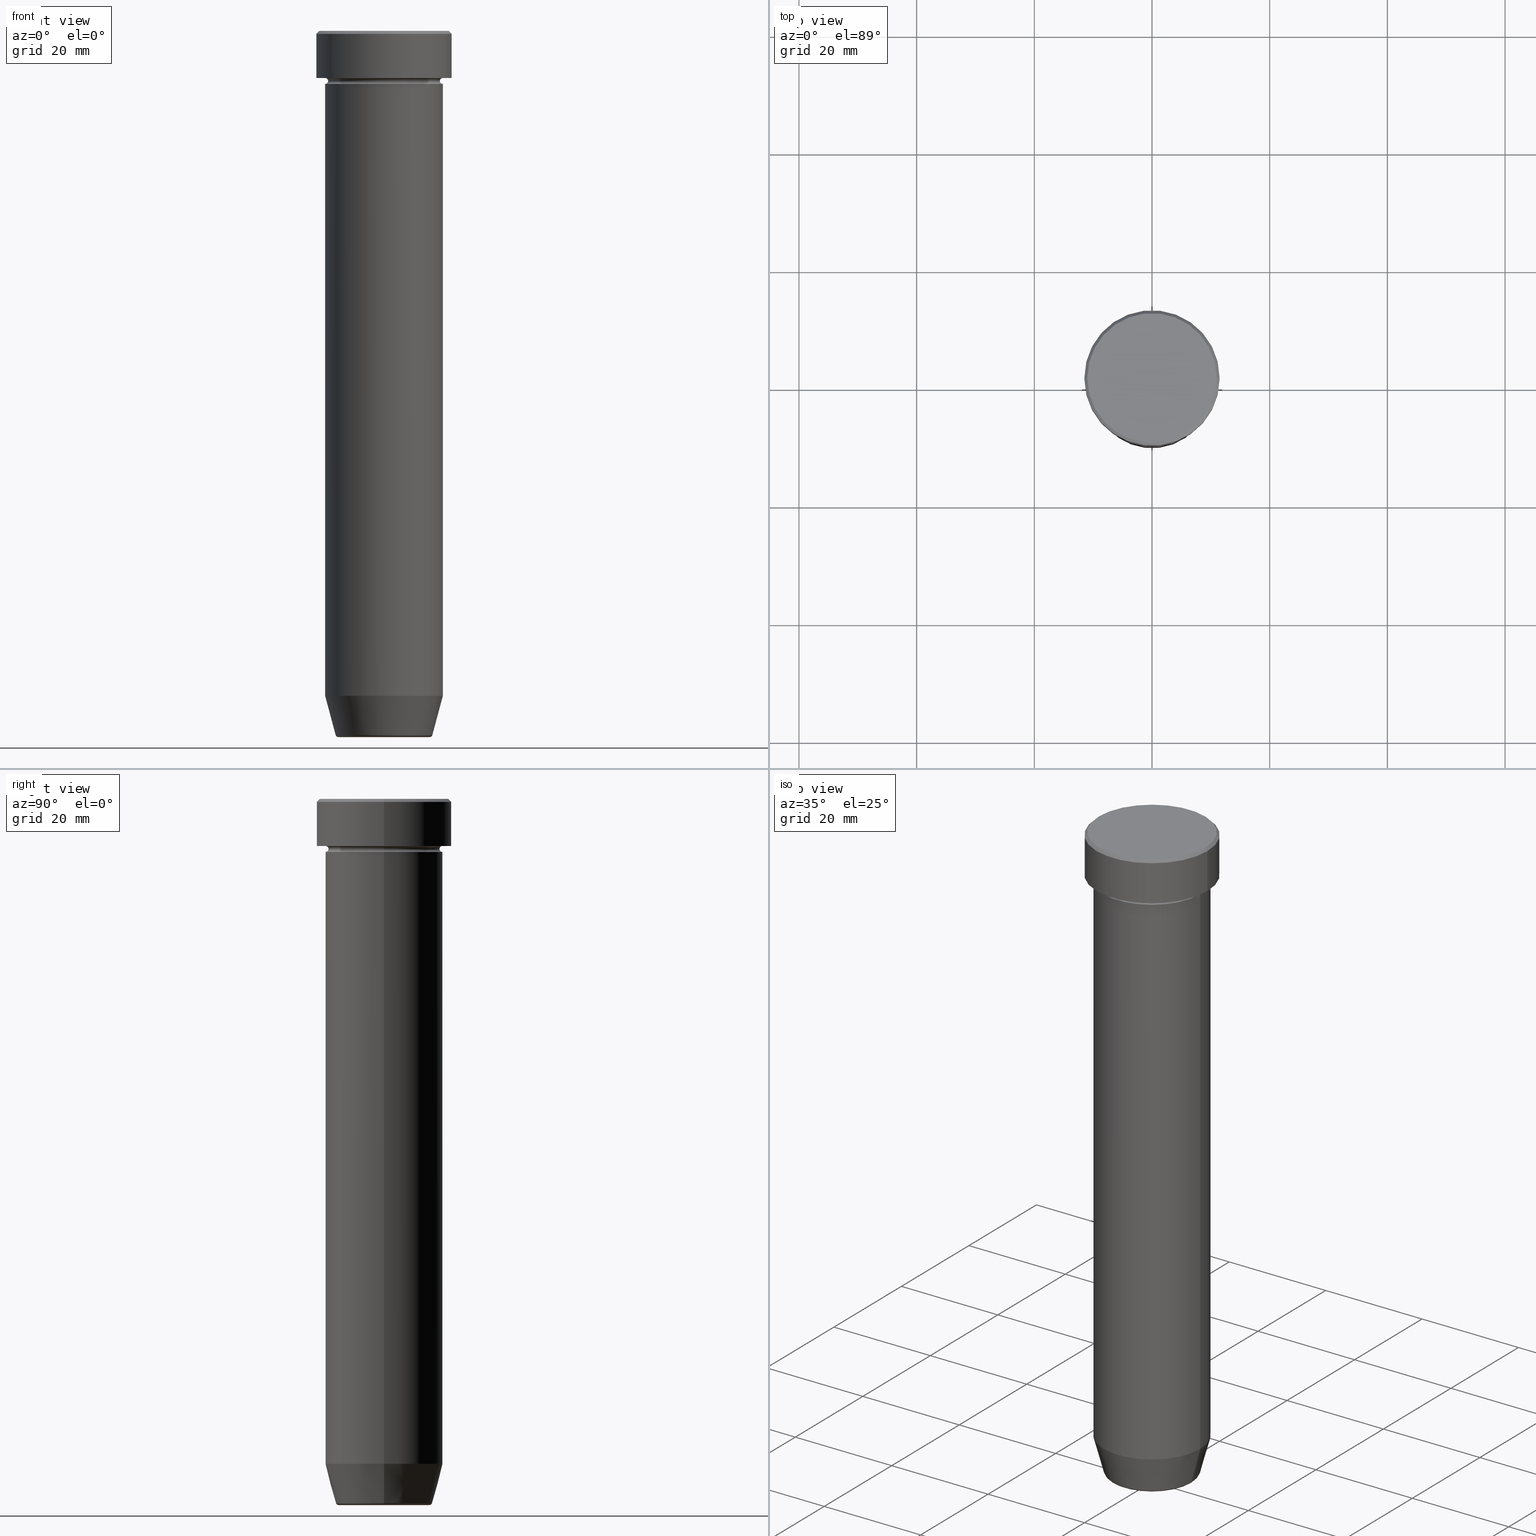
[diagram: canonical four-view strip — front | top / right | iso, engineering-drawing reading convention]
A machine part, canonical four-view strip (front | top / right | iso — engineering-drawing reading convention). The complete STEP part file that produces these views, byte-faithful:
ISO-10303-21;
HEADER;
FILE_DESCRIPTION (( 'STEP AP203' ),
    '1' );
FILE_NAME ('51a9.STEP',
    '2024-01-02T20:53:04',
    ( '' ),
    ( '' ),
    'SwSTEP 2.0',
    'SolidWorks 2019',
    '' );
FILE_SCHEMA (( 'CONFIG_CONTROL_DESIGN' ));
ENDSEC;

DATA;
#1 = ORIENTED_EDGE ( 'NONE', *, *, #342, .F. ) ;
#2 = VERTEX_POINT ( 'NONE', #157 ) ;
#3 = DIRECTION ( 'NONE',  ( -1.000000000000000000, 0.000000000000000000, -0.000000000000000000 ) ) ;
#4 = APPROVAL ( #128, 'NEUR�EN�' ) ;
#5 = CIRCLE ( 'NONE', #458, 11.50000000000000000 ) ;
#6 = EDGE_LOOP ( 'NONE', ( #470, #141 ) ) ;
#7 = AXIS2_PLACEMENT_3D ( 'NONE', #77, #172, #526 ) ;
#8 = EDGE_LOOP ( 'NONE', ( #100, #553, #138, #558 ) ) ;
#9 = DIRECTION ( 'NONE',  ( -0.000000000000000000, -0.000000000000000000, 1.000000000000000000 ) ) ;
#10 = DIRECTION ( 'NONE',  ( 0.000000000000000000, 0.000000000000000000, -1.000000000000000000 ) ) ;
#11 = VERTEX_POINT ( 'NONE', #152 ) ;
#12 = ORIENTED_EDGE ( 'NONE', *, *, #348, .F. ) ;
#13 = DESIGN_CONTEXT ( 'detailed design', #272, 'design' ) ;
#14 = DIRECTION ( 'NONE',  ( 0.000000000000000000, 0.000000000000000000, -1.000000000000000000 ) ) ;
#15 = ORIENTED_EDGE ( 'NONE', *, *, #165, .T. ) ;
#16 = DIRECTION ( 'NONE',  ( 0.000000000000000000, 0.000000000000000000, -1.000000000000000000 ) ) ;
#17 = VECTOR ( 'NONE', #114, 1000.000000000000000 ) ;
#18 = CIRCLE ( 'NONE', #291, 10.00000000000000000 ) ;
#19 = DIRECTION ( 'NONE',  ( 1.000000000000000000, 0.000000000000000000, 0.000000000000000000 ) ) ;
#20 = LINE ( 'NONE', #283, #117 ) ;
#21 = EDGE_LOOP ( 'NONE', ( #47, #380, #428, #570 ) ) ;
#22 = CARTESIAN_POINT ( 'NONE',  ( 10.00000000000000000, 0.000000000000000000, -22.00000000000000000 ) ) ;
#23 = ADVANCED_FACE ( 'NONE', ( #529 ), #361, .T. ) ;
#24 = DIRECTION ( 'NONE',  ( -0.000000000000000000, -0.000000000000000000, 1.000000000000000000 ) ) ;
#25 = AXIS2_PLACEMENT_3D ( 'NONE', #581, #436, #545 ) ;
#26 = AXIS2_PLACEMENT_3D ( 'NONE', #455, #224, #101 ) ;
#27 = CARTESIAN_POINT ( 'NONE',  ( 0.000000000000000000, 0.000000000000000000, -119.5000000000000000 ) ) ;
#28 = DIRECTION ( 'NONE',  ( -1.000000000000000000, 1.224646799147353454E-16, 0.000000000000000000 ) ) ;
#29 = VERTEX_POINT ( 'NONE', #294 ) ;
#30 = FACE_OUTER_BOUND ( 'NONE', #473, .T. ) ;
#31 = FACE_OUTER_BOUND ( 'NONE', #450, .T. ) ;
#32 = VERTEX_POINT ( 'NONE', #195 ) ;
#33 = CARTESIAN_POINT ( 'NONE',  ( 0.000000000000000000, 0.000000000000000000, -8.000000000000000000 ) ) ;
#34 = EDGE_CURVE ( 'NONE', #54, #427, #20, .T. ) ;
#35 = DIRECTION ( 'NONE',  ( 1.000000000000000000, 0.000000000000000000, 0.000000000000000000 ) ) ;
#36 = APPLICATION_PROTOCOL_DEFINITION ( 'international standard', 'config_control_design', 1994, #218 ) ;
#37 = DIRECTION ( 'NONE',  ( -0.000000000000000000, -0.000000000000000000, 1.000000000000000000 ) ) ;
#38 = CIRCLE ( 'NONE', #104, 8.223655072137185940 ) ;
#39 = DIRECTION ( 'NONE',  ( -0.000000000000000000, -0.000000000000000000, 1.000000000000000000 ) ) ;
#40 = FACE_OUTER_BOUND ( 'NONE', #366, .T. ) ;
#41 = DIRECTION ( 'NONE',  ( -1.000000000000000000, 0.000000000000000000, 0.000000000000000000 ) ) ;
#42 = ADVANCED_FACE ( 'NONE', ( #562 ), #198, .T. ) ;
#43 = APPLICATION_PROTOCOL_DEFINITION ( 'international standard', 'config_control_design', 1994, #272 ) ;
#44 = DIRECTION ( 'NONE',  ( 1.000000000000000000, 0.000000000000000000, 0.000000000000000000 ) ) ;
#45 = CIRCLE ( 'NONE', #140, 10.00000000000000000 ) ;
#46 = ORIENTED_EDGE ( 'NONE', *, *, #511, .T. ) ;
#47 = ORIENTED_EDGE ( 'NONE', *, *, #480, .F. ) ;
#48 = COORDINATED_UNIVERSAL_TIME_OFFSET ( 1, 0, .AHEAD. ) ;
#49 = CARTESIAN_POINT ( 'NONE',  ( -10.00000000000000000, 0.000000000000000000, -8.000000000000000000 ) ) ;
#50 = DATE_AND_TIME ( #425, #227 ) ;
#51 = ADVANCED_FACE ( 'NONE', ( #105 ), #61, .T. ) ;
#52 = CARTESIAN_POINT ( 'NONE',  ( 0.000000000000000000, 0.000000000000000000, -8.500000000000000000 ) ) ;
#53 = DIRECTION ( 'NONE',  ( 1.000000000000000000, 0.000000000000000000, 0.000000000000000000 ) ) ;
#54 = VERTEX_POINT ( 'NONE', #72 ) ;
#55 = ORIENTED_EDGE ( 'NONE', *, *, #87, .F. ) ;
#56 = CIRCLE ( 'NONE', #277, 0.5000000000000004441 ) ;
#57 = AXIS2_PLACEMENT_3D ( 'NONE', #52, #352, #544 ) ;
#58 = DIRECTION ( 'NONE',  ( 0.000000000000000000, -0.000000000000000000, 1.000000000000000000 ) ) ;
#59 = CARTESIAN_POINT ( 'NONE',  ( 0.000000000000000000, 0.000000000000000000, -22.00000000000000000 ) ) ;
#60 = CIRCLE ( 'NONE', #575, 9.999999999999998224 ) ;
#61 = CYLINDRICAL_SURFACE ( 'NONE', #551, 10.00000000000000000 ) ;
#62 = EDGE_CURVE ( 'NONE', #32, #374, #266, .T. ) ;
#63 = VERTEX_POINT ( 'NONE', #308 ) ;
#64 = ORIENTED_EDGE ( 'NONE', *, *, #335, .T. ) ;
#65 = CIRCLE ( 'NONE', #129, 11.00000000000000000 ) ;
#66 = AXIS2_PLACEMENT_3D ( 'NONE', #413, #153, #560 ) ;
#67 = EDGE_LOOP ( 'NONE', ( #271, #327, #97, #341 ) ) ;
#68 = CC_DESIGN_DATE_AND_TIME_ASSIGNMENT ( #501, #358, ( #112 ) ) ;
#69 = DIRECTION ( 'NONE',  ( 1.000000000000000000, 0.000000000000000000, 0.000000000000000000 ) ) ;
#70 = ORIENTED_EDGE ( 'NONE', *, *, #533, .F. ) ;
#71 = FACE_OUTER_BOUND ( 'NONE', #115, .T. ) ;
#72 = CARTESIAN_POINT ( 'NONE',  ( 11.50000000000000000, 0.000000000000000000, -8.000000000000000000 ) ) ;
#73 = PRODUCT_DEFINITION_FORMATION_WITH_SPECIFIED_SOURCE ( 'LIBOVOLN�', '', #182, .NOT_KNOWN. ) ;
#74 = DIRECTION ( 'NONE',  ( -1.000000000000000000, 0.000000000000000000, 0.000000000000000000 ) ) ;
#75 = DIRECTION ( 'NONE',  ( 0.000000000000000000, -1.000000000000000000, 0.000000000000000000 ) ) ;
#76 = EDGE_CURVE ( 'NONE', #461, #212, #419, .T. ) ;
#77 = CARTESIAN_POINT ( 'NONE',  ( 0.000000000000000000, 0.000000000000000000, -0.5000000000000073275 ) ) ;
#78 = DIRECTION ( 'NONE',  ( 0.000000000000000000, -1.000000000000000000, 0.000000000000000000 ) ) ;
#79 = DIRECTION ( 'NONE',  ( 1.000000000000000000, 0.000000000000000000, 0.000000000000000000 ) ) ;
#80 = DIRECTION ( 'NONE',  ( 0.2588190451025214611, 0.000000000000000000, 0.9659258262890679791 ) ) ;
#81 = DIRECTION ( 'NONE',  ( 0.000000000000000000, 0.000000000000000000, -1.000000000000000000 ) ) ;
#82 = DATE_AND_TIME ( #550, #459 ) ;
#83 = AXIS2_PLACEMENT_3D ( 'NONE', #118, #211, #444 ) ;
#84 = AXIS2_PLACEMENT_3D ( 'NONE', #154, #9, #370 ) ;
#85 = CARTESIAN_POINT ( 'NONE',  ( 0.000000000000000000, 0.000000000000000000, 0.000000000000000000 ) ) ;
#86 = FACE_BOUND ( 'NONE', #250, .T. ) ;
#87 = EDGE_CURVE ( 'NONE', #63, #11, #305, .T. ) ;
#88 = AXIS2_PLACEMENT_3D ( 'NONE', #216, #542, #81 ) ;
#89 = CARTESIAN_POINT ( 'NONE',  ( 0.000000000000000000, 0.000000000000000000, -120.0000000000000000 ) ) ;
#90 = DATE_AND_TIME ( #497, #131 ) ;
#91 = CIRCLE ( 'NONE', #226, 7.740692158992650285 ) ;
#92 = ORIENTED_EDGE ( 'NONE', *, *, #243, .T. ) ;
#93 = EDGE_CURVE ( 'NONE', #322, #2, #242, .T. ) ;
#94 = PERSON_AND_ORGANIZATION_ROLE ( 'creator' ) ;
#95 = DIRECTION ( 'NONE',  ( -0.000000000000000000, -0.000000000000000000, 1.000000000000000000 ) ) ;
#96 = FACE_OUTER_BOUND ( 'NONE', #6, .T. ) ;
#97 = ORIENTED_EDGE ( 'NONE', *, *, #511, .F. ) ;
#98 = DIRECTION ( 'NONE',  ( 1.000000000000000000, 0.000000000000000000, 0.000000000000000000 ) ) ;
#99 = ORIENTED_EDGE ( 'NONE', *, *, #348, .T. ) ;
#100 = ORIENTED_EDGE ( 'NONE', *, *, #586, .F. ) ;
#101 = DIRECTION ( 'NONE',  ( -1.000000000000000000, -1.224646799147353454E-16, 0.000000000000000000 ) ) ;
#102 = ORIENTED_EDGE ( 'NONE', *, *, #202, .F. ) ;
#103 = AXIS2_PLACEMENT_3D ( 'NONE', #534, #351, #474 ) ;
#104 = AXIS2_PLACEMENT_3D ( 'NONE', #326, #192, #337 ) ;
#105 = FACE_OUTER_BOUND ( 'NONE', #110, .T. ) ;
#106 = CARTESIAN_POINT ( 'NONE',  ( 0.000000000000000000, 0.000000000000000000, -9.000000000000001776 ) ) ;
#107 = ADVANCED_FACE ( 'NONE', ( #30 ), #532, .T. ) ;
#108 = EDGE_LOOP ( 'NONE', ( #189, #102 ) ) ;
#109 = ORIENTED_EDGE ( 'NONE', *, *, #34, .T. ) ;
#110 = EDGE_LOOP ( 'NONE', ( #273, #528, #514, #55 ) ) ;
#111 = TOROIDAL_SURFACE ( 'NONE', #340, 10.00000000000000000, 0.5000000000000000000 ) ;
#112 = PRODUCT_DEFINITION ( 'NEZN�M�', '', #73, #13 ) ;
#113 = LOCAL_TIME ( 21, 53, 4.000000000000000000, #572 ) ;
#114 = DIRECTION ( 'NONE',  ( -0.000000000000000000, -0.000000000000000000, 1.000000000000000000 ) ) ;
#115 = EDGE_LOOP ( 'NONE', ( #414, #385, #334, #321 ) ) ;
#116 = CARTESIAN_POINT ( 'NONE',  ( 0.000000000000000000, 0.000000000000000000, -112.9999999999999858 ) ) ;
#117 = VECTOR ( 'NONE', #332, 1000.000000000000000 ) ;
#118 = CARTESIAN_POINT ( 'NONE',  ( 0.000000000000000000, 0.000000000000000000, -9.000000000000001776 ) ) ;
#119 = CARTESIAN_POINT ( 'NONE',  ( 10.00000000000000000, 0.000000000000000000, 0.000000000000000000 ) ) ;
#120 = AXIS2_PLACEMENT_3D ( 'NONE', #460, #58, #201 ) ;
#121 = CARTESIAN_POINT ( 'NONE',  ( 11.00000000000000000, 1.347111479062088405E-15, 0.000000000000000000 ) ) ;
#122 = PLANE ( 'NONE',  #477 ) ;
#123 = FACE_OUTER_BOUND ( 'NONE', #509, .T. ) ;
#124 = DIRECTION ( 'NONE',  ( 1.000000000000000000, 0.000000000000000000, 0.000000000000000000 ) ) ;
#125 = MECHANICAL_CONTEXT ( 'NONE', #218, 'mechanical' ) ;
#126 = DIRECTION ( 'NONE',  ( 0.000000000000000000, -0.000000000000000000, 1.000000000000000000 ) ) ;
#127 = EDGE_CURVE ( 'NONE', #368, #500, #60, .T. ) ;
#128 = APPROVAL_STATUS ( 'not_yet_approved' ) ;
#129 = AXIS2_PLACEMENT_3D ( 'NONE', #162, #349, #536 ) ;
#130 = CIRCLE ( 'NONE', #434, 9.999999999999998224 ) ;
#131 = LOCAL_TIME ( 21, 53, 4.000000000000000000, #494 ) ;
#132 = ORIENTED_EDGE ( 'NONE', *, *, #243, .F. ) ;
#133 = DIRECTION ( 'NONE',  ( -0.000000000000000000, -0.000000000000000000, 1.000000000000000000 ) ) ;
#134 = PERSON_AND_ORGANIZATION_ROLE ( 'creator' ) ;
#135 = CARTESIAN_POINT ( 'NONE',  ( -9.999999999999998224, 1.224646799147353059E-15, -112.9999999999999858 ) ) ;
#136 = ADVANCED_FACE ( 'NONE', ( #587 ), #555, .T. ) ;
#137 = VERTEX_POINT ( 'NONE', #475 ) ;
#138 = ORIENTED_EDGE ( 'NONE', *, *, #595, .T. ) ;
#139 = AXIS2_PLACEMENT_3D ( 'NONE', #483, #307, #486 ) ;
#140 = AXIS2_PLACEMENT_3D ( 'NONE', #106, #420, #98 ) ;
#141 = ORIENTED_EDGE ( 'NONE', *, *, #282, .T. ) ;
#142 = DIRECTION ( 'NONE',  ( -1.000000000000000000, 0.000000000000000000, 0.000000000000000000 ) ) ;
#143 = ORIENTED_EDGE ( 'NONE', *, *, #342, .T. ) ;
#144 = CLOSED_SHELL ( 'NONE', ( #306, #210, #364, #237, #155, #253, #452, #567 ) ) ;
#145 = LINE ( 'NONE', #149, #594 ) ;
#146 = ADVANCED_BREP_SHAPE_REPRESENTATION ( '51a9', ( #589, #585, #525 ), #576 ) ;
#147 = DIRECTION ( 'NONE',  ( -0.000000000000000000, -0.000000000000000000, 1.000000000000000000 ) ) ;
#148 = EDGE_CURVE ( 'NONE', #338, #408, #65, .T. ) ;
#149 = CARTESIAN_POINT ( 'NONE',  ( -9.999999999999998224, 1.224646799147353059E-15, 0.000000000000000000 ) ) ;
#150 = CIRCLE ( 'NONE', #446, 7.740692158992650285 ) ;
#151 = VECTOR ( 'NONE', #133, 1000.000000000000000 ) ;
#152 = CARTESIAN_POINT ( 'NONE',  ( 10.00000000000000000, 0.000000000000000000, -9.000000000000001776 ) ) ;
#153 = DIRECTION ( 'NONE',  ( -0.000000000000000000, -0.000000000000000000, 1.000000000000000000 ) ) ;
#154 = CARTESIAN_POINT ( 'NONE',  ( 0.000000000000000000, 0.000000000000000000, -8.500000000000000000 ) ) ;
#155 = ADVANCED_FACE ( 'NONE', ( #396 ), #300, .T. ) ;
#156 = VERTEX_POINT ( 'NONE', #167 ) ;
#157 = CARTESIAN_POINT ( 'NONE',  ( -10.00000000000000000, 1.224646799147353256E-15, -22.00000000000000000 ) ) ;
#158 = DATE_TIME_ROLE ( 'classification_date' ) ;
#159 = AXIS2_PLACEMENT_3D ( 'NONE', #384, #478, #74 ) ;
#160 = CC_DESIGN_APPROVAL ( #503, ( #375 ) ) ;
#161 = CARTESIAN_POINT ( 'NONE',  ( -11.50000000000000000, 1.408343819019456176E-15, -8.000000000000000000 ) ) ;
#162 = CARTESIAN_POINT ( 'NONE',  ( 0.000000000000000000, 0.000000000000000000, 0.000000000000000000 ) ) ;
#163 = AXIS2_PLACEMENT_3D ( 'NONE', #209, #75, #213 ) ;
#164 = DIRECTION ( 'NONE',  ( -0.2588190451025214611, 3.169619151431774186E-17, 0.9659258262890679791 ) ) ;
#165 = EDGE_CURVE ( 'NONE', #523, #212, #311, .T. ) ;
#166 = LINE ( 'NONE', #588, #17 ) ;
#167 = CARTESIAN_POINT ( 'NONE',  ( -7.740692158992650285, 9.775343368540031246E-16, -120.0000000000000000 ) ) ;
#168 = TOROIDAL_SURFACE ( 'NONE', #139, 7.740692158992650285, 0.5000000000000000000 ) ;
#169 = CIRCLE ( 'NONE', #84, 9.500000000000000000 ) ;
#170 = CC_DESIGN_SECURITY_CLASSIFICATION ( #375, ( #73 ) ) ;
#171 = DIRECTION ( 'NONE',  ( 1.000000000000000000, 0.000000000000000000, 0.000000000000000000 ) ) ;
#172 = DIRECTION ( 'NONE',  ( 0.000000000000000000, 0.000000000000000000, -1.000000000000000000 ) ) ;
#173 = DIRECTION ( 'NONE',  ( -0.000000000000000000, -0.000000000000000000, 1.000000000000000000 ) ) ;
#174 = EDGE_CURVE ( 'NONE', #137, #32, #263, .T. ) ;
#175 =( LENGTH_UNIT ( ) NAMED_UNIT ( * ) SI_UNIT ( .MILLI., .METRE. ) );
#176 = CARTESIAN_POINT ( 'NONE',  ( 0.000000000000000000, 0.000000000000000000, 0.000000000000000000 ) ) ;
#177 = ORIENTED_EDGE ( 'NONE', *, *, #186, .T. ) ;
#178 = CALENDAR_DATE ( 2024, 2, 1 ) ;
#179 = CIRCLE ( 'NONE', #255, 10.00000000000000000 ) ;
#180 = AXIS2_PLACEMENT_3D ( 'NONE', #476, #537, #79 ) ;
#181 = DIRECTION ( 'NONE',  ( 1.000000000000000000, 0.000000000000000000, 0.000000000000000000 ) ) ;
#182 = PRODUCT ( '51a9', '51a9', '', ( #125 ) ) ;
#183 = DIRECTION ( 'NONE',  ( 1.000000000000000000, 0.000000000000000000, 0.000000000000000000 ) ) ;
#184 = ORIENTED_EDGE ( 'NONE', *, *, #586, .T. ) ;
#185 = PERSON_AND_ORGANIZATION ( #496, #246 ) ;
#186 = EDGE_CURVE ( 'NONE', #137, #11, #56, .T. ) ;
#187 = DIRECTION ( 'NONE',  ( 0.000000000000000000, 0.000000000000000000, -1.000000000000000000 ) ) ;
#188 = CARTESIAN_POINT ( 'NONE',  ( 0.000000000000000000, 0.000000000000000000, -8.500000000000000000 ) ) ;
#189 = ORIENTED_EDGE ( 'NONE', *, *, #323, .F. ) ;
#190 = CONICAL_SURFACE ( 'NONE', #538, 8.124355652982131915, 0.2617993877991502405 ) ;
#191 = AXIS2_PLACEMENT_3D ( 'NONE', #333, #289, #519 ) ;
#192 = DIRECTION ( 'NONE',  ( -0.000000000000000000, -0.000000000000000000, 1.000000000000000000 ) ) ;
#193 = EDGE_LOOP ( 'NONE', ( #46, #203, #596, #571 ) ) ;
#194 = PLANE ( 'NONE',  #354 ) ;
#195 = CARTESIAN_POINT ( 'NONE',  ( -9.500000000000000000, 1.194030629168669469E-15, -8.500000000000000000 ) ) ;
#196 = EDGE_CURVE ( 'NONE', #362, #374, #179, .T. ) ;
#197 = AXIS2_PLACEMENT_3D ( 'NONE', #465, #147, #328 ) ;
#198 = CYLINDRICAL_SURFACE ( 'NONE', #197, 11.50000000000000000 ) ;
#199 = DIRECTION ( 'NONE',  ( 1.000000000000000000, 0.000000000000000000, 0.000000000000000000 ) ) ;
#200 = CARTESIAN_POINT ( 'NONE',  ( 0.000000000000000000, 0.000000000000000000, 0.000000000000000000 ) ) ;
#201 = DIRECTION ( 'NONE',  ( 1.000000000000000000, 0.000000000000000000, 0.000000000000000000 ) ) ;
#202 = EDGE_CURVE ( 'NONE', #268, #54, #5, .T. ) ;
#203 = ORIENTED_EDGE ( 'NONE', *, *, #480, .T. ) ;
#204 = EDGE_LOOP ( 'NONE', ( #331, #409, #109, #454 ) ) ;
#205 = ORIENTED_EDGE ( 'NONE', *, *, #196, .T. ) ;
#206 = CARTESIAN_POINT ( 'NONE',  ( 0.000000000000000000, 0.000000000000000000, -8.000000000000000000 ) ) ;
#207 = CC_DESIGN_APPROVAL ( #4, ( #112 ) ) ;
#208 = DIRECTION ( 'NONE',  ( 1.000000000000000000, 0.000000000000000000, 0.000000000000000000 ) ) ;
#209 = CARTESIAN_POINT ( 'NONE',  ( 7.740692158992650285, 0.000000000000000000, -119.5000000000000000 ) ) ;
#210 = ADVANCED_FACE ( 'NONE', ( #367 ), #190, .T. ) ;
#211 = DIRECTION ( 'NONE',  ( -0.000000000000000000, -0.000000000000000000, 1.000000000000000000 ) ) ;
#212 = VERTEX_POINT ( 'NONE', #407 ) ;
#213 = DIRECTION ( 'NONE',  ( 0.000000000000000000, 0.000000000000000000, -1.000000000000000000 ) ) ;
#214 = CC_DESIGN_PERSON_AND_ORGANIZATION_ASSIGNMENT ( #443, #309, ( #73 ) ) ;
#215 = DIRECTION ( 'NONE',  ( 1.000000000000000000, 0.000000000000000000, 0.000000000000000000 ) ) ;
#216 = CARTESIAN_POINT ( 'NONE',  ( -10.00000000000000000, 0.000000000000000000, -8.500000000000000000 ) ) ;
#217 = AXIS2_PLACEMENT_3D ( 'NONE', #382, #220, #69 ) ;
#218 = APPLICATION_CONTEXT ( 'configuration controlled 3d designs of mechanical parts and assemblies' ) ;
#219 = APPROVAL_PERSON_ORGANIZATION ( #353, #4, #453 ) ;
#220 = DIRECTION ( 'NONE',  ( -0.000000000000000000, -0.000000000000000000, 1.000000000000000000 ) ) ;
#221 = CC_DESIGN_PERSON_AND_ORGANIZATION_ASSIGNMENT ( #185, #590, ( #182 ) ) ;
#222 = CARTESIAN_POINT ( 'NONE',  ( 0.000000000000000000, 0.000000000000000000, 0.000000000000000000 ) ) ;
#223 = DIRECTION ( 'NONE',  ( 1.000000000000000000, 0.000000000000000000, 0.000000000000000000 ) ) ;
#224 = DIRECTION ( 'NONE',  ( -1.224646799147353207E-16, 1.000000000000000000, 0.000000000000000000 ) ) ;
#225 = AXIS2_PLACEMENT_3D ( 'NONE', #310, #491, #124 ) ;
#226 = AXIS2_PLACEMENT_3D ( 'NONE', #557, #421, #19 ) ;
#227 = LOCAL_TIME ( 21, 53, 4.000000000000000000, #372 ) ;
#228 = ORIENTED_EDGE ( 'NONE', *, *, #196, .F. ) ;
#229 = ORIENTED_EDGE ( 'NONE', *, *, #335, .F. ) ;
#230 = APPROVAL_DATE_TIME ( #82, #4 ) ;
#231 = FACE_OUTER_BOUND ( 'NONE', #234, .T. ) ;
#232 = DIRECTION ( 'NONE',  ( -0.000000000000000000, -0.000000000000000000, 1.000000000000000000 ) ) ;
#233 = ORIENTED_EDGE ( 'NONE', *, *, #296, .T. ) ;
#234 = EDGE_LOOP ( 'NONE', ( #276, #463, #12, #245 ) ) ;
#235 = VECTOR ( 'NONE', #80, 1000.000000000000114 ) ;
#236 = CIRCLE ( 'NONE', #451, 11.50000000000000000 ) ;
#237 = ADVANCED_FACE ( 'NONE', ( #96 ), #194, .F. ) ;
#238 = EDGE_LOOP ( 'NONE', ( #355, #411, #417, #70 ) ) ;
#239 = FACE_OUTER_BOUND ( 'NONE', #319, .T. ) ;
#240 = CARTESIAN_POINT ( 'NONE',  ( 0.000000000000000000, 0.000000000000000000, -22.00000000000000000 ) ) ;
#241 = ORIENTED_EDGE ( 'NONE', *, *, #595, .F. ) ;
#242 = CIRCLE ( 'NONE', #284, 10.00000000000000000 ) ;
#243 = EDGE_CURVE ( 'NONE', #461, #156, #150, .T. ) ;
#244 = DIRECTION ( 'NONE',  ( 1.000000000000000000, 0.000000000000000000, 0.000000000000000000 ) ) ;
#245 = ORIENTED_EDGE ( 'NONE', *, *, #62, .F. ) ;
#246 = ORGANIZATION ( 'NEUR�EN�', 'NEUR�EN�', '' ) ;
#247 = ORIENTED_EDGE ( 'NONE', *, *, #448, .F. ) ;
#248 = PERSON_AND_ORGANIZATION_ROLE ( 'classification_officer' ) ;
#249 = CARTESIAN_POINT ( 'NONE',  ( -8.124355652982131915, 9.949466145559272639E-16, -120.0000000000000000 ) ) ;
#250 = EDGE_LOOP ( 'NONE', ( #99, #205 ) ) ;
#251 = CYLINDRICAL_SURFACE ( 'NONE', #103, 10.00000000000000000 ) ;
#252 = CARTESIAN_POINT ( 'NONE',  ( -11.00000000000000000, 0.000000000000000000, 0.000000000000000000 ) ) ;
#253 = ADVANCED_FACE ( 'NONE', ( #395 ), #593, .T. ) ;
#254 = DIRECTION ( 'NONE',  ( 1.000000000000000000, 0.000000000000000000, 0.000000000000000000 ) ) ;
#255 = AXIS2_PLACEMENT_3D ( 'NONE', #206, #258, #438 ) ;
#256 = AXIS2_PLACEMENT_3D ( 'NONE', #592, #126, #181 ) ;
#257 = CARTESIAN_POINT ( 'NONE',  ( -7.740692158992650285, 9.479613875695363848E-16, -119.5000000000000000 ) ) ;
#258 = DIRECTION ( 'NONE',  ( -0.000000000000000000, -0.000000000000000000, 1.000000000000000000 ) ) ;
#259 = CARTESIAN_POINT ( 'NONE',  ( -11.00000000000000000, 0.000000000000000000, 0.000000000000000000 ) ) ;
#260 = DIRECTION ( 'NONE',  ( -1.000000000000000000, 0.000000000000000000, 0.000000000000000000 ) ) ;
#261 = EDGE_CURVE ( 'NONE', #11, #287, #524, .T. ) ;
#262 = DIRECTION ( 'NONE',  ( -0.000000000000000000, -0.000000000000000000, 1.000000000000000000 ) ) ;
#263 = CIRCLE ( 'NONE', #546, 9.500000000000000000 ) ;
#264 = AXIS2_PLACEMENT_3D ( 'NONE', #257, #539, #437 ) ;
#265 = CARTESIAN_POINT ( 'NONE',  ( 0.000000000000000000, 0.000000000000000000, 0.000000000000000000 ) ) ;
#266 = CIRCLE ( 'NONE', #88, 0.5000000000000004441 ) ;
#267 = ADVANCED_FACE ( 'NONE', ( #389 ), #251, .T. ) ;
#268 = VERTEX_POINT ( 'NONE', #161 ) ;
#269 = PERSON_AND_ORGANIZATION ( #496, #246 ) ;
#270 = LINE ( 'NONE', #449, #151 ) ;
#271 = ORIENTED_EDGE ( 'NONE', *, *, #499, .T. ) ;
#272 = APPLICATION_CONTEXT ( 'configuration controlled 3d designs of mechanical parts and assemblies' ) ;
#273 = ORIENTED_EDGE ( 'NONE', *, *, #439, .T. ) ;
#274 = ADVANCED_FACE ( 'NONE', ( #31 ), #122, .T. ) ;
#275 = CARTESIAN_POINT ( 'NONE',  ( 0.000000000000000000, 0.000000000000000000, -0.5000000000000073275 ) ) ;
#276 = ORIENTED_EDGE ( 'NONE', *, *, #520, .T. ) ;
#277 = AXIS2_PLACEMENT_3D ( 'NONE', #584, #78, #481 ) ;
#278 = CARTESIAN_POINT ( 'NONE',  ( 11.50000000000000000, 0.000000000000000000, -0.5000000000000073275 ) ) ;
#279 = ORIENTED_EDGE ( 'NONE', *, *, #174, .T. ) ;
#280 = CIRCLE ( 'NONE', #412, 0.5000000000000004441 ) ;
#281 = ORIENTED_EDGE ( 'NONE', *, *, #165, .F. ) ;
#282 = EDGE_CURVE ( 'NONE', #2, #322, #490, .T. ) ;
#283 = CARTESIAN_POINT ( 'NONE',  ( 11.50000000000000000, 0.000000000000000000, 0.000000000000000000 ) ) ;
#284 = AXIS2_PLACEMENT_3D ( 'NONE', #392, #173, #35 ) ;
#285 = FACE_OUTER_BOUND ( 'NONE', #410, .T. ) ;
#286 = DIRECTION ( 'NONE',  ( -1.000000000000000000, 0.000000000000000000, -0.000000000000000000 ) ) ;
#287 = VERTEX_POINT ( 'NONE', #343 ) ;
#288 = ORIENTED_EDGE ( 'NONE', *, *, #76, .T. ) ;
#289 = DIRECTION ( 'NONE',  ( -0.000000000000000000, -0.000000000000000000, 1.000000000000000000 ) ) ;
#290 = CIRCLE ( 'NONE', #217, 11.50000000000000000 ) ;
#291 = AXIS2_PLACEMENT_3D ( 'NONE', #59, #512, #457 ) ;
#292 = ORIENTED_EDGE ( 'NONE', *, *, #174, .F. ) ;
#293 = APPROVAL_ROLE ( '' ) ;
#294 = CARTESIAN_POINT ( 'NONE',  ( -10.00000000000000000, 1.224646799147353256E-15, -22.00000000000000000 ) ) ;
#295 = FACE_OUTER_BOUND ( 'NONE', #510, .T. ) ;
#296 = EDGE_CURVE ( 'NONE', #268, #535, #166, .T. ) ;
#297 = ORIENTED_EDGE ( 'NONE', *, *, #439, .F. ) ;
#298 = DIRECTION ( 'NONE',  ( 1.000000000000000000, 0.000000000000000000, 0.000000000000000000 ) ) ;
#299 = CARTESIAN_POINT ( 'NONE',  ( 8.124355652982131915, 0.000000000000000000, -120.0000000000000000 ) ) ;
#300 = CYLINDRICAL_SURFACE ( 'NONE', #225, 9.999999999999998224 ) ;
#301 = AXIS2_PLACEMENT_3D ( 'NONE', #432, #24, #260 ) ;
#302 = CIRCLE ( 'NONE', #191, 11.00000000000000000 ) ;
#303 = DIRECTION ( 'NONE',  ( 0.7071067811865426878, 8.659560562354874926E-17, -0.7071067811865524577 ) ) ;
#304 = DIRECTION ( 'NONE',  ( 0.000000000000000000, 0.000000000000000000, -1.000000000000000000 ) ) ;
#305 = LINE ( 'NONE', #119, #498 ) ;
#306 = ADVANCED_FACE ( 'NONE', ( #71 ), #168, .T. ) ;
#307 = DIRECTION ( 'NONE',  ( -0.000000000000000000, -0.000000000000000000, 1.000000000000000000 ) ) ;
#308 = CARTESIAN_POINT ( 'NONE',  ( 10.00000000000000000, 0.000000000000000000, -22.00000000000000000 ) ) ;
#309 = PERSON_AND_ORGANIZATION_ROLE ( 'design_supplier' ) ;
#310 = CARTESIAN_POINT ( 'NONE',  ( 0.000000000000000000, 0.000000000000000000, 0.000000000000000000 ) ) ;
#311 = CIRCLE ( 'NONE', #301, 8.223655072137185940 ) ;
#312 = AXIS2_PLACEMENT_3D ( 'NONE', #495, #318, #3 ) ;
#313 = APPROVAL_ROLE ( '' ) ;
#314 = CYLINDRICAL_SURFACE ( 'NONE', #401, 9.999999999999998224 ) ;
#315 =( NAMED_UNIT ( * ) SI_UNIT ( $, .STERADIAN. ) SOLID_ANGLE_UNIT ( ) );
#316 = DIRECTION ( 'NONE',  ( -0.000000000000000000, -0.000000000000000000, 1.000000000000000000 ) ) ;
#317 = EDGE_CURVE ( 'NONE', #212, #500, #472, .T. ) ;
#318 = DIRECTION ( 'NONE',  ( 0.000000000000000000, 0.000000000000000000, -1.000000000000000000 ) ) ;
#319 = EDGE_LOOP ( 'NONE', ( #556, #279, #435, #228 ) ) ;
#320 = TOROIDAL_SURFACE ( 'NONE', #57, 10.00000000000000000, 0.5000000000000000000 ) ;
#321 = ORIENTED_EDGE ( 'NONE', *, *, #76, .F. ) ;
#322 = VERTEX_POINT ( 'NONE', #22 ) ;
#323 = EDGE_CURVE ( 'NONE', #54, #268, #290, .T. ) ;
#324 = CARTESIAN_POINT ( 'NONE',  ( 9.999999999999998224, 0.000000000000000000, -112.9999999999999858 ) ) ;
#325 = ORIENTED_EDGE ( 'NONE', *, *, #261, .T. ) ;
#326 = CARTESIAN_POINT ( 'NONE',  ( 0.000000000000000000, 0.000000000000000000, -119.6294095225512564 ) ) ;
#327 = ORIENTED_EDGE ( 'NONE', *, *, #559, .T. ) ;
#328 = DIRECTION ( 'NONE',  ( 1.000000000000000000, 0.000000000000000000, 0.000000000000000000 ) ) ;
#329 = AXIS2_PLACEMENT_3D ( 'NONE', #583, #441, #215 ) ;
#330 = DIRECTION ( 'NONE',  ( -0.000000000000000000, -0.000000000000000000, 1.000000000000000000 ) ) ;
#331 = ORIENTED_EDGE ( 'NONE', *, *, #296, .F. ) ;
#332 = DIRECTION ( 'NONE',  ( -0.000000000000000000, -0.000000000000000000, 1.000000000000000000 ) ) ;
#333 = CARTESIAN_POINT ( 'NONE',  ( 0.000000000000000000, 0.000000000000000000, 0.000000000000000000 ) ) ;
#334 = ORIENTED_EDGE ( 'NONE', *, *, #499, .F. ) ;
#335 = EDGE_CURVE ( 'NONE', #535, #427, #547, .T. ) ;
#336 = ORIENTED_EDGE ( 'NONE', *, *, #552, .T. ) ;
#337 = DIRECTION ( 'NONE',  ( -1.000000000000000000, 0.000000000000000000, 0.000000000000000000 ) ) ;
#338 = VERTEX_POINT ( 'NONE', #252 ) ;
#339 = SHAPE_DEFINITION_REPRESENTATION ( #359, #146 ) ;
#340 = AXIS2_PLACEMENT_3D ( 'NONE', #188, #187, #41 ) ;
#341 = ORIENTED_EDGE ( 'NONE', *, *, #317, .F. ) ;
#342 = EDGE_CURVE ( 'NONE', #32, #287, #280, .T. ) ;
#343 = CARTESIAN_POINT ( 'NONE',  ( -10.00000000000000000, 1.224646799147353256E-15, -9.000000000000001776 ) ) ;
#344 = ORIENTED_EDGE ( 'NONE', *, *, #552, .F. ) ;
#345 = DIRECTION ( 'NONE',  ( 1.000000000000000000, 0.000000000000000000, 0.000000000000000000 ) ) ;
#346 = DIRECTION ( 'NONE',  ( 0.000000000000000000, 0.000000000000000000, -1.000000000000000000 ) ) ;
#347 = DIRECTION ( 'NONE',  ( -1.000000000000000000, 0.000000000000000000, -0.000000000000000000 ) ) ;
#348 = EDGE_CURVE ( 'NONE', #374, #362, #422, .T. ) ;
#349 = DIRECTION ( 'NONE',  ( -0.000000000000000000, -0.000000000000000000, 1.000000000000000000 ) ) ;
#350 = CIRCLE ( 'NONE', #26, 0.5000000000000004441 ) ;
#351 = DIRECTION ( 'NONE',  ( -0.000000000000000000, -0.000000000000000000, 1.000000000000000000 ) ) ;
#352 = DIRECTION ( 'NONE',  ( -0.000000000000000000, -0.000000000000000000, 1.000000000000000000 ) ) ;
#353 = PERSON_AND_ORGANIZATION ( #496, #246 ) ;
#354 = AXIS2_PLACEMENT_3D ( 'NONE', #240, #10, #286 ) ;
#355 = ORIENTED_EDGE ( 'NONE', *, *, #379, .F. ) ;
#356 = VECTOR ( 'NONE', #440, 1000.000000000000000 ) ;
#357 = EDGE_CURVE ( 'NONE', #156, #523, #479, .T. ) ;
#358 = DATE_TIME_ROLE ( 'creation_date' ) ;
#359 = PRODUCT_DEFINITION_SHAPE ( 'NONE', 'NONE',  #112 ) ;
#360 = LINE ( 'NONE', #599, #447 ) ;
#361 = CONICAL_SURFACE ( 'NONE', #369, 11.00000000000000000, 0.7853981633974415066 ) ;
#362 = VERTEX_POINT ( 'NONE', #502 ) ;
#363 = CARTESIAN_POINT ( 'NONE',  ( 11.00000000000000000, 1.377727649040772389E-15, 0.000000000000000000 ) ) ;
#364 = ADVANCED_FACE ( 'NONE', ( #507 ), #314, .T. ) ;
#365 = TOROIDAL_SURFACE ( 'NONE', #180, 10.00000000000000000, 0.5000000000000000000 ) ;
#366 = EDGE_LOOP ( 'NONE', ( #517, #143, #568, #404 ) ) ;
#367 = FACE_OUTER_BOUND ( 'NONE', #67, .T. ) ;
#368 = VERTEX_POINT ( 'NONE', #135 ) ;
#369 = AXIS2_PLACEMENT_3D ( 'NONE', #200, #16, #424 ) ;
#370 = DIRECTION ( 'NONE',  ( 1.000000000000000000, 0.000000000000000000, 0.000000000000000000 ) ) ;
#371 = ORIENTED_EDGE ( 'NONE', *, *, #323, .T. ) ;
#372 = COORDINATED_UNIVERSAL_TIME_OFFSET ( 1, 0, .AHEAD. ) ;
#373 = ADVANCED_FACE ( 'NONE', ( #86, #403 ), #591, .T. ) ;
#374 = VERTEX_POINT ( 'NONE', #49 ) ;
#375 = SECURITY_CLASSIFICATION ( '', '', #489 ) ;
#376 = CARTESIAN_POINT ( 'NONE',  ( 7.740692158992650285, 0.000000000000000000, -120.0000000000000000 ) ) ;
#377 = APPROVAL ( #549, 'NEUR�EN�' ) ;
#378 = APPROVAL_DATE_TIME ( #564, #503 ) ;
#379 = EDGE_CURVE ( 'NONE', #29, #287, #270, .T. ) ;
#380 = ORIENTED_EDGE ( 'NONE', *, *, #127, .T. ) ;
#381 = PERSON_AND_ORGANIZATION ( #496, #246 ) ;
#382 = CARTESIAN_POINT ( 'NONE',  ( 0.000000000000000000, 0.000000000000000000, -8.000000000000000000 ) ) ;
#383 = TOROIDAL_SURFACE ( 'NONE', #393, 10.00000000000000000, 0.5000000000000000000 ) ;
#384 = CARTESIAN_POINT ( 'NONE',  ( 0.000000000000000000, 0.000000000000000000, -8.000000000000000000 ) ) ;
#385 = ORIENTED_EDGE ( 'NONE', *, *, #357, .T. ) ;
#386 = DIRECTION ( 'NONE',  ( -0.000000000000000000, -0.000000000000000000, 1.000000000000000000 ) ) ;
#387 = ADVANCED_FACE ( 'NONE', ( #231 ), #111, .F. ) ;
#388 = AXIS2_PLACEMENT_3D ( 'NONE', #222, #386, #254 ) ;
#389 = FACE_OUTER_BOUND ( 'NONE', #238, .T. ) ;
#390 = ORIENTED_EDGE ( 'NONE', *, *, #559, .F. ) ;
#391 = DIRECTION ( 'NONE',  ( -0.000000000000000000, -0.000000000000000000, 1.000000000000000000 ) ) ;
#392 = CARTESIAN_POINT ( 'NONE',  ( 0.000000000000000000, 0.000000000000000000, -22.00000000000000000 ) ) ;
#393 = AXIS2_PLACEMENT_3D ( 'NONE', #464, #416, #142 ) ;
#394 = PERSON_AND_ORGANIZATION ( #496, #246 ) ;
#395 = FACE_OUTER_BOUND ( 'NONE', #548, .T. ) ;
#396 = FACE_OUTER_BOUND ( 'NONE', #21, .T. ) ;
#397 = ADVANCED_FACE ( 'NONE', ( #399 ), #406, .T. ) ;
#398 = DIRECTION ( 'NONE',  ( 0.000000000000000000, 0.000000000000000000, 1.000000000000000000 ) ) ;
#399 = FACE_OUTER_BOUND ( 'NONE', #456, .T. ) ;
#400 = CC_DESIGN_PERSON_AND_ORGANIZATION_ASSIGNMENT ( #269, #94, ( #73 ) ) ;
#401 = AXIS2_PLACEMENT_3D ( 'NONE', #176, #95, #44 ) ;
#402 = PERSON_AND_ORGANIZATION ( #496, #246 ) ;
#403 = FACE_OUTER_BOUND ( 'NONE', #108, .T. ) ;
#404 = ORIENTED_EDGE ( 'NONE', *, *, #186, .F. ) ;
#405 = EDGE_CURVE ( 'NONE', #500, #322, #360, .T. ) ;
#406 = PLANE ( 'NONE',  #256 ) ;
#407 = CARTESIAN_POINT ( 'NONE',  ( 8.223655072137185940, 0.000000000000000000, -119.6294095225512564 ) ) ;
#408 = VERTEX_POINT ( 'NONE', #363 ) ;
#409 = ORIENTED_EDGE ( 'NONE', *, *, #202, .T. ) ;
#410 = EDGE_LOOP ( 'NONE', ( #92, #504 ) ) ;
#411 = ORIENTED_EDGE ( 'NONE', *, *, #448, .T. ) ;
#412 = AXIS2_PLACEMENT_3D ( 'NONE', #430, #433, #28 ) ;
#413 = CARTESIAN_POINT ( 'NONE',  ( 0.000000000000000000, 0.000000000000000000, -22.00000000000000000 ) ) ;
#414 = ORIENTED_EDGE ( 'NONE', *, *, #462, .F. ) ;
#415 = ORIENTED_EDGE ( 'NONE', *, *, #317, .T. ) ;
#416 = DIRECTION ( 'NONE',  ( 0.000000000000000000, 0.000000000000000000, -1.000000000000000000 ) ) ;
#417 = ORIENTED_EDGE ( 'NONE', *, *, #87, .T. ) ;
#418 = ADVANCED_FACE ( 'NONE', ( #40 ), #320, .F. ) ;
#419 = CIRCLE ( 'NONE', #163, 0.5000000000000004441 ) ;
#420 = DIRECTION ( 'NONE',  ( -0.000000000000000000, -0.000000000000000000, 1.000000000000000000 ) ) ;
#421 = DIRECTION ( 'NONE',  ( 0.000000000000000000, 0.000000000000000000, -1.000000000000000000 ) ) ;
#422 = CIRCLE ( 'NONE', #159, 10.00000000000000000 ) ;
#423 = APPROVAL_PERSON_ORGANIZATION ( #402, #377, #313 ) ;
#424 = DIRECTION ( 'NONE',  ( -1.000000000000000000, 0.000000000000000000, 0.000000000000000000 ) ) ;
#425 = CALENDAR_DATE ( 2024, 2, 1 ) ;
#426 = EDGE_CURVE ( 'NONE', #137, #362, #350, .T. ) ;
#427 = VERTEX_POINT ( 'NONE', #278 ) ;
#428 = ORIENTED_EDGE ( 'NONE', *, *, #405, .T. ) ;
#429 = APPROVAL_STATUS ( 'not_yet_approved' ) ;
#430 = CARTESIAN_POINT ( 'NONE',  ( -10.00000000000000000, 1.224646799147353256E-15, -8.500000000000000000 ) ) ;
#431 = PRODUCT_RELATED_PRODUCT_CATEGORY ( 'detail', '', ( #182 ) ) ;
#432 = CARTESIAN_POINT ( 'NONE',  ( 0.000000000000000000, 0.000000000000000000, -119.6294095225512564 ) ) ;
#433 = DIRECTION ( 'NONE',  ( 1.224646799147353207E-16, 1.000000000000000000, 0.000000000000000000 ) ) ;
#434 = AXIS2_PLACEMENT_3D ( 'NONE', #516, #569, #244 ) ;
#435 = ORIENTED_EDGE ( 'NONE', *, *, #62, .T. ) ;
#436 = DIRECTION ( 'NONE',  ( 0.000000000000000000, 0.000000000000000000, -1.000000000000000000 ) ) ;
#437 = DIRECTION ( 'NONE',  ( -1.000000000000000000, 1.224646799147355426E-16, 0.000000000000000000 ) ) ;
#438 = DIRECTION ( 'NONE',  ( -1.000000000000000000, 0.000000000000000000, 0.000000000000000000 ) ) ;
#439 = EDGE_CURVE ( 'NONE', #63, #29, #493, .T. ) ;
#440 = DIRECTION ( 'NONE',  ( -0.7071067811865426878, 0.000000000000000000, -0.7071067811865524577 ) ) ;
#441 = DIRECTION ( 'NONE',  ( -0.000000000000000000, -0.000000000000000000, 1.000000000000000000 ) ) ;
#442 = DIRECTION ( 'NONE',  ( 1.000000000000000000, 0.000000000000000000, 0.000000000000000000 ) ) ;
#443 = PERSON_AND_ORGANIZATION ( #496, #246 ) ;
#444 = DIRECTION ( 'NONE',  ( 1.000000000000000000, 0.000000000000000000, 0.000000000000000000 ) ) ;
#445 = DIRECTION ( 'NONE',  ( -0.000000000000000000, -0.000000000000000000, 1.000000000000000000 ) ) ;
#446 = AXIS2_PLACEMENT_3D ( 'NONE', #467, #304, #171 ) ;
#447 = VECTOR ( 'NONE', #316, 1000.000000000000000 ) ;
#448 = EDGE_CURVE ( 'NONE', #29, #63, #18, .T. ) ;
#449 = CARTESIAN_POINT ( 'NONE',  ( -10.00000000000000000, 1.224646799147353256E-15, 0.000000000000000000 ) ) ;
#450 = EDGE_LOOP ( 'NONE', ( #297, #247 ) ) ;
#451 = AXIS2_PLACEMENT_3D ( 'NONE', #275, #14, #199 ) ;
#452 = ADVANCED_FACE ( 'NONE', ( #285 ), #566, .F. ) ;
#453 = APPROVAL_ROLE ( '' ) ;
#454 = ORIENTED_EDGE ( 'NONE', *, *, #543, .T. ) ;
#455 = CARTESIAN_POINT ( 'NONE',  ( 10.00000000000000000, 1.224646799147353256E-15, -8.500000000000000000 ) ) ;
#456 = EDGE_LOOP ( 'NONE', ( #513, #336 ) ) ;
#457 = DIRECTION ( 'NONE',  ( 1.000000000000000000, 0.000000000000000000, 0.000000000000000000 ) ) ;
#458 = AXIS2_PLACEMENT_3D ( 'NONE', #33, #391, #183 ) ;
#459 = LOCAL_TIME ( 21, 53, 4.000000000000000000, #506 ) ;
#460 = CARTESIAN_POINT ( 'NONE',  ( 0.000000000000000000, 8.572527594031472993E-15, -120.0000000000000000 ) ) ;
#461 = VERTEX_POINT ( 'NONE', #376 ) ;
#462 = EDGE_CURVE ( 'NONE', #156, #461, #91, .T. ) ;
#463 = ORIENTED_EDGE ( 'NONE', *, *, #426, .T. ) ;
#464 = CARTESIAN_POINT ( 'NONE',  ( 0.000000000000000000, 0.000000000000000000, -8.500000000000000000 ) ) ;
#465 = CARTESIAN_POINT ( 'NONE',  ( 0.000000000000000000, 0.000000000000000000, 0.000000000000000000 ) ) ;
#466 = LINE ( 'NONE', #249, #577 ) ;
#467 = CARTESIAN_POINT ( 'NONE',  ( 0.000000000000000000, 0.000000000000000000, -120.0000000000000000 ) ) ;
#468 = ADVANCED_FACE ( 'NONE', ( #239 ), #383, .F. ) ;
#469 = VECTOR ( 'NONE', #303, 1000.000000000000000 ) ;
#470 = ORIENTED_EDGE ( 'NONE', *, *, #93, .T. ) ;
#471 = CC_DESIGN_DATE_AND_TIME_ASSIGNMENT ( #50, #158, ( #375 ) ) ;
#472 = LINE ( 'NONE', #299, #235 ) ;
#473 = EDGE_LOOP ( 'NONE', ( #371, #233, #64, #521 ) ) ;
#474 = DIRECTION ( 'NONE',  ( 1.000000000000000000, 0.000000000000000000, 0.000000000000000000 ) ) ;
#475 = CARTESIAN_POINT ( 'NONE',  ( 9.500000000000000000, 0.000000000000000000, -8.500000000000000000 ) ) ;
#476 = CARTESIAN_POINT ( 'NONE',  ( 0.000000000000000000, 0.000000000000000000, -8.500000000000000000 ) ) ;
#477 = AXIS2_PLACEMENT_3D ( 'NONE', #530, #346, #347 ) ;
#478 = DIRECTION ( 'NONE',  ( -0.000000000000000000, -0.000000000000000000, 1.000000000000000000 ) ) ;
#479 = CIRCLE ( 'NONE', #264, 0.4999999999999995559 ) ;
#480 = EDGE_CURVE ( 'NONE', #368, #2, #145, .T. ) ;
#481 = DIRECTION ( 'NONE',  ( 0.000000000000000000, 0.000000000000000000, -1.000000000000000000 ) ) ;
#482 = LINE ( 'NONE', #259, #356 ) ;
#483 = CARTESIAN_POINT ( 'NONE',  ( 0.000000000000000000, 0.000000000000000000, -119.5000000000000000 ) ) ;
#484 = DIRECTION ( 'NONE',  ( -0.000000000000000000, -0.000000000000000000, 1.000000000000000000 ) ) ;
#485 = CLOSED_SHELL ( 'NONE', ( #136, #387, #418, #51, #107, #274, #397, #42, #373, #267, #580, #468, #23 ) ) ;
#486 = DIRECTION ( 'NONE',  ( 1.000000000000000000, 0.000000000000000000, 0.000000000000000000 ) ) ;
#487 = CARTESIAN_POINT ( 'NONE',  ( 0.000000000000000000, 0.000000000000000000, -8.500000000000000000 ) ) ;
#488 = CC_DESIGN_PERSON_AND_ORGANIZATION_ASSIGNMENT ( #394, #134, ( #112 ) ) ;
#489 = SECURITY_CLASSIFICATION_LEVEL ( 'unclassified' ) ;
#490 = CIRCLE ( 'NONE', #492, 10.00000000000000000 ) ;
#491 = DIRECTION ( 'NONE',  ( -0.000000000000000000, -0.000000000000000000, 1.000000000000000000 ) ) ;
#492 = AXIS2_PLACEMENT_3D ( 'NONE', #541, #37, #578 ) ;
#493 = CIRCLE ( 'NONE', #66, 10.00000000000000000 ) ;
#494 = COORDINATED_UNIVERSAL_TIME_OFFSET ( 1, 0, .AHEAD. ) ;
#495 = CARTESIAN_POINT ( 'NONE',  ( 0.000000000000000000, 11.50000000000000000, -8.000000000000000000 ) ) ;
#496 = PERSON ( 'NEUR�EN�', 'NEUR�EN�', 'NEUR�EN�', ('NEUR�EN�'), ('NEUR�EN�'), ('NEUR�EN�') ) ;
#497 = CALENDAR_DATE ( 2024, 2, 1 ) ;
#498 = VECTOR ( 'NONE', #445, 1000.000000000000000 ) ;
#499 = EDGE_CURVE ( 'NONE', #212, #523, #38, .T. ) ;
#500 = VERTEX_POINT ( 'NONE', #324 ) ;
#501 = DATE_AND_TIME ( #178, #515 ) ;
#502 = CARTESIAN_POINT ( 'NONE',  ( 10.00000000000000000, 1.224646799147353256E-15, -8.000000000000000000 ) ) ;
#503 = APPROVAL ( #429, 'NEUR�EN�' ) ;
#504 = ORIENTED_EDGE ( 'NONE', *, *, #462, .T. ) ;
#505 = AXIS2_PLACEMENT_3D ( 'NONE', #27, #540, #208 ) ;
#506 = COORDINATED_UNIVERSAL_TIME_OFFSET ( 1, 0, .AHEAD. ) ;
#507 = FACE_OUTER_BOUND ( 'NONE', #193, .T. ) ;
#508 = CARTESIAN_POINT ( 'NONE',  ( -8.223655072137185940, 1.115877042642911659E-15, -119.6294095225512564 ) ) ;
#509 = EDGE_LOOP ( 'NONE', ( #1, #292, #177, #325 ) ) ;
#510 = EDGE_LOOP ( 'NONE', ( #573, #132, #288, #281 ) ) ;
#511 = EDGE_CURVE ( 'NONE', #500, #368, #130, .T. ) ;
#512 = DIRECTION ( 'NONE',  ( -0.000000000000000000, -0.000000000000000000, 1.000000000000000000 ) ) ;
#513 = ORIENTED_EDGE ( 'NONE', *, *, #148, .T. ) ;
#514 = ORIENTED_EDGE ( 'NONE', *, *, #261, .F. ) ;
#515 = LOCAL_TIME ( 21, 53, 4.000000000000000000, #48 ) ;
#516 = CARTESIAN_POINT ( 'NONE',  ( 0.000000000000000000, 0.000000000000000000, -112.9999999999999858 ) ) ;
#517 = ORIENTED_EDGE ( 'NONE', *, *, #520, .F. ) ;
#518 = PERSON_AND_ORGANIZATION ( #496, #246 ) ;
#519 = DIRECTION ( 'NONE',  ( 1.000000000000000000, 0.000000000000000000, 0.000000000000000000 ) ) ;
#520 = EDGE_CURVE ( 'NONE', #32, #137, #169, .T. ) ;
#521 = ORIENTED_EDGE ( 'NONE', *, *, #34, .F. ) ;
#522 = CARTESIAN_POINT ( 'NONE',  ( -11.50000000000000000, 1.408343819019456176E-15, -0.5000000000000073275 ) ) ;
#523 = VERTEX_POINT ( 'NONE', #508 ) ;
#524 = CIRCLE ( 'NONE', #83, 10.00000000000000000 ) ;
#525 = AXIS2_PLACEMENT_3D ( 'NONE', #265, #398, #223 ) ;
#526 = DIRECTION ( 'NONE',  ( 1.000000000000000000, 0.000000000000000000, 0.000000000000000000 ) ) ;
#527 = CC_DESIGN_APPROVAL ( #377, ( #73 ) ) ;
#528 = ORIENTED_EDGE ( 'NONE', *, *, #379, .T. ) ;
#529 = FACE_OUTER_BOUND ( 'NONE', #8, .T. ) ;
#530 = CARTESIAN_POINT ( 'NONE',  ( 0.000000000000000000, 10.00000000000000000, -22.00000000000000000 ) ) ;
#531 = EDGE_LOOP ( 'NONE', ( #344, #184, #229, #241 ) ) ;
#532 = CYLINDRICAL_SURFACE ( 'NONE', #388, 11.50000000000000000 ) ;
#533 = EDGE_CURVE ( 'NONE', #287, #11, #45, .T. ) ;
#534 = CARTESIAN_POINT ( 'NONE',  ( 0.000000000000000000, 0.000000000000000000, 0.000000000000000000 ) ) ;
#535 = VERTEX_POINT ( 'NONE', #522 ) ;
#536 = DIRECTION ( 'NONE',  ( 1.000000000000000000, 0.000000000000000000, 0.000000000000000000 ) ) ;
#537 = DIRECTION ( 'NONE',  ( -0.000000000000000000, -0.000000000000000000, 1.000000000000000000 ) ) ;
#538 = AXIS2_PLACEMENT_3D ( 'NONE', #89, #232, #53 ) ;
#539 = DIRECTION ( 'NONE',  ( 1.224646799147353207E-16, 1.000000000000000000, 0.000000000000000000 ) ) ;
#540 = DIRECTION ( 'NONE',  ( -0.000000000000000000, -0.000000000000000000, 1.000000000000000000 ) ) ;
#541 = CARTESIAN_POINT ( 'NONE',  ( 0.000000000000000000, 0.000000000000000000, -22.00000000000000000 ) ) ;
#542 = DIRECTION ( 'NONE',  ( -0.000000000000000000, -1.000000000000000000, -0.000000000000000000 ) ) ;
#543 = EDGE_CURVE ( 'NONE', #427, #535, #236, .T. ) ;
#544 = DIRECTION ( 'NONE',  ( 1.000000000000000000, 0.000000000000000000, 0.000000000000000000 ) ) ;
#545 = DIRECTION ( 'NONE',  ( -1.000000000000000000, 0.000000000000000000, 0.000000000000000000 ) ) ;
#546 = AXIS2_PLACEMENT_3D ( 'NONE', #487, #484, #442 ) ;
#547 = CIRCLE ( 'NONE', #7, 11.50000000000000000 ) ;
#548 = EDGE_LOOP ( 'NONE', ( #390, #15, #415, #561 ) ) ;
#549 = APPROVAL_STATUS ( 'not_yet_approved' ) ;
#550 = CALENDAR_DATE ( 2024, 2, 1 ) ;
#551 = AXIS2_PLACEMENT_3D ( 'NONE', #85, #262, #345 ) ;
#552 = EDGE_CURVE ( 'NONE', #408, #338, #302, .T. ) ;
#553 = ORIENTED_EDGE ( 'NONE', *, *, #148, .F. ) ;
#554 = APPROVAL_DATE_TIME ( #90, #377 ) ;
#555 = CONICAL_SURFACE ( 'NONE', #25, 11.00000000000000000, 0.7853981633974415066 ) ;
#556 = ORIENTED_EDGE ( 'NONE', *, *, #426, .F. ) ;
#557 = CARTESIAN_POINT ( 'NONE',  ( 0.000000000000000000, 0.000000000000000000, -120.0000000000000000 ) ) ;
#558 = ORIENTED_EDGE ( 'NONE', *, *, #543, .F. ) ;
#559 = EDGE_CURVE ( 'NONE', #523, #368, #466, .T. ) ;
#560 = DIRECTION ( 'NONE',  ( 1.000000000000000000, 0.000000000000000000, 0.000000000000000000 ) ) ;
#561 = ORIENTED_EDGE ( 'NONE', *, *, #127, .F. ) ;
#562 = FACE_OUTER_BOUND ( 'NONE', #204, .T. ) ;
#563 = UNCERTAINTY_MEASURE_WITH_UNIT (LENGTH_MEASURE( 1.000000000000000082E-05 ), #175, 'distance_accuracy_value', 'NONE');
#564 = DATE_AND_TIME ( #574, #113 ) ;
#565 = TOROIDAL_SURFACE ( 'NONE', #505, 7.740692158992650285, 0.5000000000000000000 ) ;
#566 = PLANE ( 'NONE',  #120 ) ;
#567 = ADVANCED_FACE ( 'NONE', ( #295 ), #565, .T. ) ;
#568 = ORIENTED_EDGE ( 'NONE', *, *, #533, .T. ) ;
#569 = DIRECTION ( 'NONE',  ( -0.000000000000000000, -0.000000000000000000, 1.000000000000000000 ) ) ;
#570 = ORIENTED_EDGE ( 'NONE', *, *, #282, .F. ) ;
#571 = ORIENTED_EDGE ( 'NONE', *, *, #405, .F. ) ;
#572 = COORDINATED_UNIVERSAL_TIME_OFFSET ( 1, 0, .AHEAD. ) ;
#573 = ORIENTED_EDGE ( 'NONE', *, *, #357, .F. ) ;
#574 = CALENDAR_DATE ( 2024, 2, 1 ) ;
#575 = AXIS2_PLACEMENT_3D ( 'NONE', #116, #39, #298 ) ;
#576 =( GEOMETRIC_REPRESENTATION_CONTEXT ( 3 ) GLOBAL_UNCERTAINTY_ASSIGNED_CONTEXT ( ( #563 ) ) GLOBAL_UNIT_ASSIGNED_CONTEXT ( ( #175, #597, #315 ) ) REPRESENTATION_CONTEXT ( 'NONE', 'WORKASPACE' ) );
#577 = VECTOR ( 'NONE', #164, 1000.000000000000114 ) ;
#578 = DIRECTION ( 'NONE',  ( 1.000000000000000000, 0.000000000000000000, 0.000000000000000000 ) ) ;
#579 = APPROVAL_PERSON_ORGANIZATION ( #381, #503, #293 ) ;
#580 = ADVANCED_FACE ( 'NONE', ( #123 ), #365, .F. ) ;
#581 = CARTESIAN_POINT ( 'NONE',  ( 0.000000000000000000, 0.000000000000000000, 0.000000000000000000 ) ) ;
#582 = LINE ( 'NONE', #121, #469 ) ;
#583 = CARTESIAN_POINT ( 'NONE',  ( 0.000000000000000000, 0.000000000000000000, -120.0000000000000000 ) ) ;
#584 = CARTESIAN_POINT ( 'NONE',  ( 10.00000000000000000, 0.000000000000000000, -8.500000000000000000 ) ) ;
#585 = MANIFOLD_SOLID_BREP ( 'Zaoblit4', #144 ) ;
#586 = EDGE_CURVE ( 'NONE', #408, #427, #582, .T. ) ;
#587 = FACE_OUTER_BOUND ( 'NONE', #531, .T. ) ;
#588 = CARTESIAN_POINT ( 'NONE',  ( -11.50000000000000000, 1.408343819019456176E-15, 0.000000000000000000 ) ) ;
#589 = MANIFOLD_SOLID_BREP ( 'Zkosen�1', #485 ) ;
#590 = PERSON_AND_ORGANIZATION_ROLE ( 'design_owner' ) ;
#591 = PLANE ( 'NONE',  #312 ) ;
#592 = CARTESIAN_POINT ( 'NONE',  ( 0.000000000000000000, 0.000000000000000000, 0.000000000000000000 ) ) ;
#593 = CONICAL_SURFACE ( 'NONE', #329, 8.124355652982131915, 0.2617993877991502405 ) ;
#594 = VECTOR ( 'NONE', #330, 1000.000000000000000 ) ;
#595 = EDGE_CURVE ( 'NONE', #338, #535, #482, .T. ) ;
#596 = ORIENTED_EDGE ( 'NONE', *, *, #93, .F. ) ;
#597 =( NAMED_UNIT ( * ) PLANE_ANGLE_UNIT ( ) SI_UNIT ( $, .RADIAN. ) );
#598 = CC_DESIGN_PERSON_AND_ORGANIZATION_ASSIGNMENT ( #518, #248, ( #375 ) ) ;
#599 = CARTESIAN_POINT ( 'NONE',  ( 9.999999999999998224, 0.000000000000000000, 0.000000000000000000 ) ) ;
ENDSEC;
END-ISO-10303-21;
